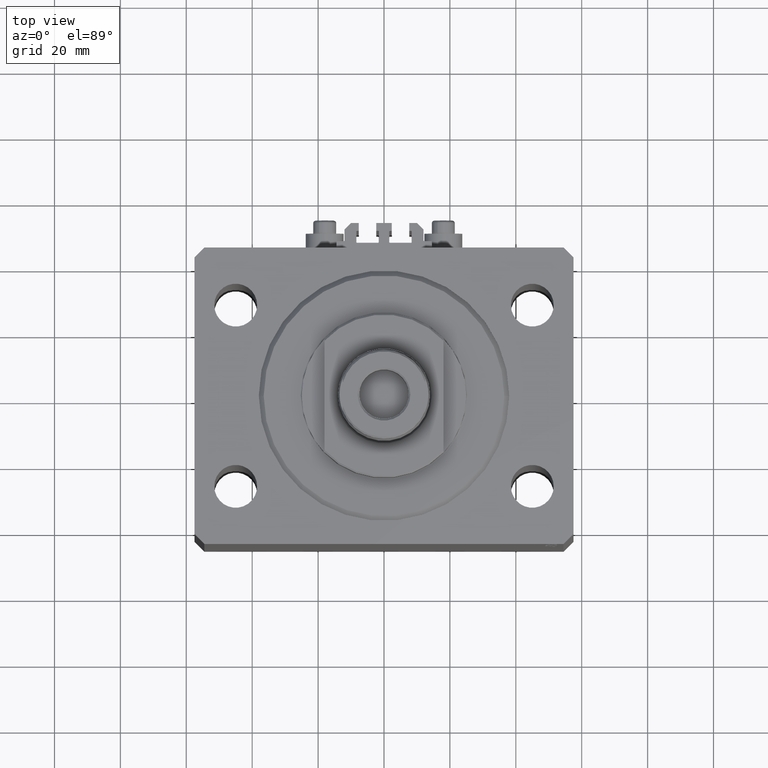
[diagram: clean part render]
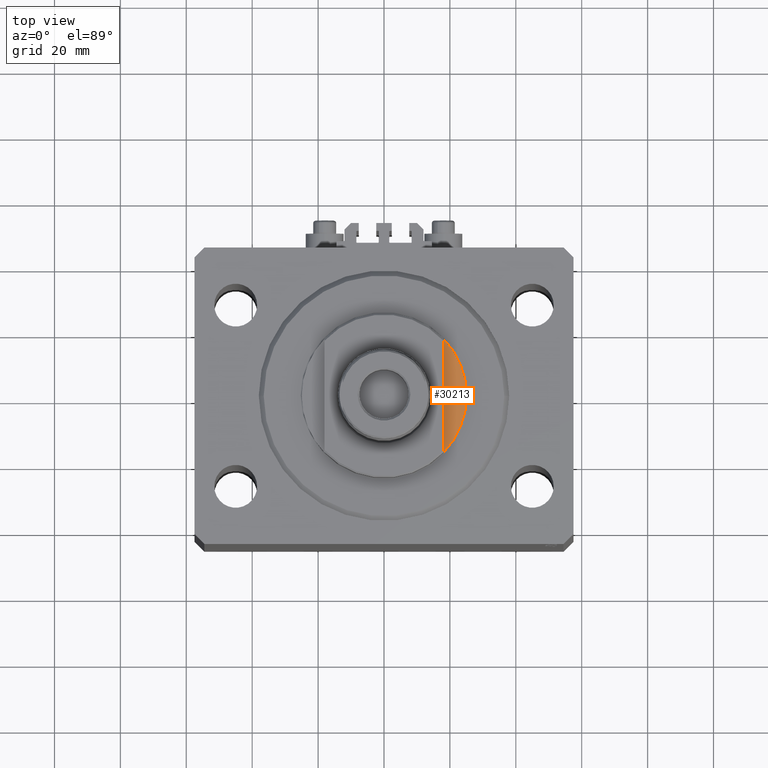
[diagram: same view with one face highlighted and labeled with its STEP entity id]
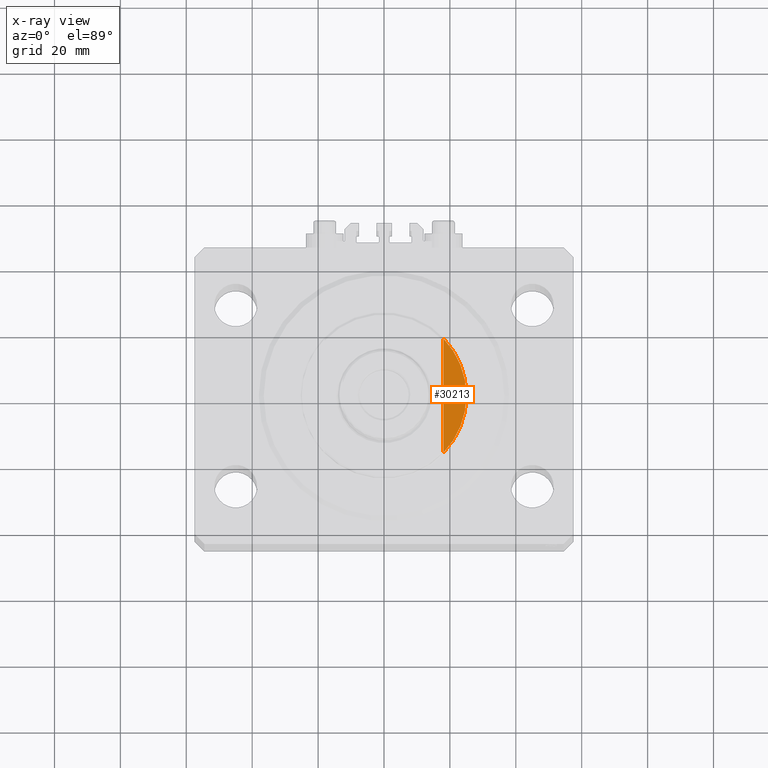
[diagram: x-ray of the same camera — body ghosted, the highlighted face saturated]
A machine part, top view. The second image highlights one B-rep face of the part: STEP entity #30213.
The next image is the same camera in x-ray: the body ghosted, the highlighted face saturated — about 0% of this face is hidden behind the body in this view.
In plain terms, the highlighted planar face has unit normal (0, 0, 1).
Its self-contained STEP definition (entity closure, byte-faithful):
#247 = DIRECTION ( 'NONE',  ( 0.000000000000000000, 0.000000000000000000, -1.000000000000000000 ) ) ;
#640 = DIRECTION ( 'NONE',  ( 0.000000000000000000, 0.000000000000000000, -1.000000000000000000 ) ) ;
#1161 = AXIS2_PLACEMENT_3D ( 'NONE', #14956, #247, #8072 ) ;
#1824 = EDGE_CURVE ( 'NONE', #32498, #46495, #17830, .T. ) ;
#4187 = VERTEX_POINT ( 'NONE', #11344 ) ;
#5443 = LINE ( 'NONE', #38052, #41065 ) ;
#6001 = ORIENTED_EDGE ( 'NONE', *, *, #21992, .T. ) ;
#7655 = CARTESIAN_POINT ( 'NONE',  ( -18.00000000000000000, 17.34935157289747920, -1.000000000000000000 ) ) ;
#8072 = DIRECTION ( 'NONE',  ( -1.000000000000000000, 0.000000000000000000, 0.000000000000000000 ) ) ;
#11344 = CARTESIAN_POINT ( 'NONE',  ( -18.00000000000000000, -17.34935157289747920, -1.000000000000000000 ) ) ;
#14956 = CARTESIAN_POINT ( 'NONE',  ( 0.000000000000000000, 0.000000000000000000, -1.000000000000000000 ) ) ;
#17830 = CIRCLE ( 'NONE', #1161, 25.00000000000000000 ) ;
#18676 = CARTESIAN_POINT ( 'NONE',  ( 0.000000000000000000, 0.000000000000000000, -1.000000000000000000 ) ) ;
#19201 = ORIENTED_EDGE ( 'NONE', *, *, #1824, .T. ) ;
#19606 = AXIS2_PLACEMENT_3D ( 'NONE', #18676, #640, #29562 ) ;
#20756 = AXIS2_PLACEMENT_3D ( 'NONE', #40628, #26860, #30175 ) ;
#21992 = EDGE_CURVE ( 'NONE', #46495, #4187, #5443, .T. ) ;
#26395 = PLANE ( 'NONE',  #20756 ) ;
#26398 = CIRCLE ( 'NONE', #19606, 25.00000000000000000 ) ;
#26860 = DIRECTION ( 'NONE',  ( 0.000000000000000000, 0.000000000000000000, -1.000000000000000000 ) ) ;
#29562 = DIRECTION ( 'NONE',  ( -1.000000000000000000, 0.000000000000000000, 0.000000000000000000 ) ) ;
#30175 = DIRECTION ( 'NONE',  ( -1.000000000000000000, 0.000000000000000000, -0.000000000000000000 ) ) ;
#30213 = ADVANCED_FACE ( 'NONE', ( #44414 ), #26395, .T. ) ;
#32498 = VERTEX_POINT ( 'NONE', #38557 ) ;
#32772 = EDGE_LOOP ( 'NONE', ( #37019, #19201, #6001 ) ) ;
#37019 = ORIENTED_EDGE ( 'NONE', *, *, #41357, .T. ) ;
#38052 = CARTESIAN_POINT ( 'NONE',  ( -18.00000000000000000, -41.24318125460256113, -1.000000000000000000 ) ) ;
#38286 = DIRECTION ( 'NONE',  ( -0.000000000000000000, -1.000000000000000000, -0.000000000000000000 ) ) ;
#38557 = CARTESIAN_POINT ( 'NONE',  ( -25.00000000000000000, 3.061616997868383043E-15, -1.000000000000000000 ) ) ;
#40628 = CARTESIAN_POINT ( 'NONE',  ( 0.000000000000000000, 0.000000000000000000, -1.000000000000000000 ) ) ;
#41065 = VECTOR ( 'NONE', #38286, 1000.000000000000000 ) ;
#41357 = EDGE_CURVE ( 'NONE', #4187, #32498, #26398, .T. ) ;
#44414 = FACE_OUTER_BOUND ( 'NONE', #32772, .T. ) ;
#46495 = VERTEX_POINT ( 'NONE', #7655 ) ;